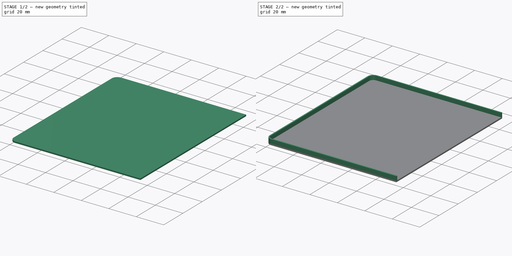
[diagram: build sequence overview — one tinted view per stage of 2, left to right]
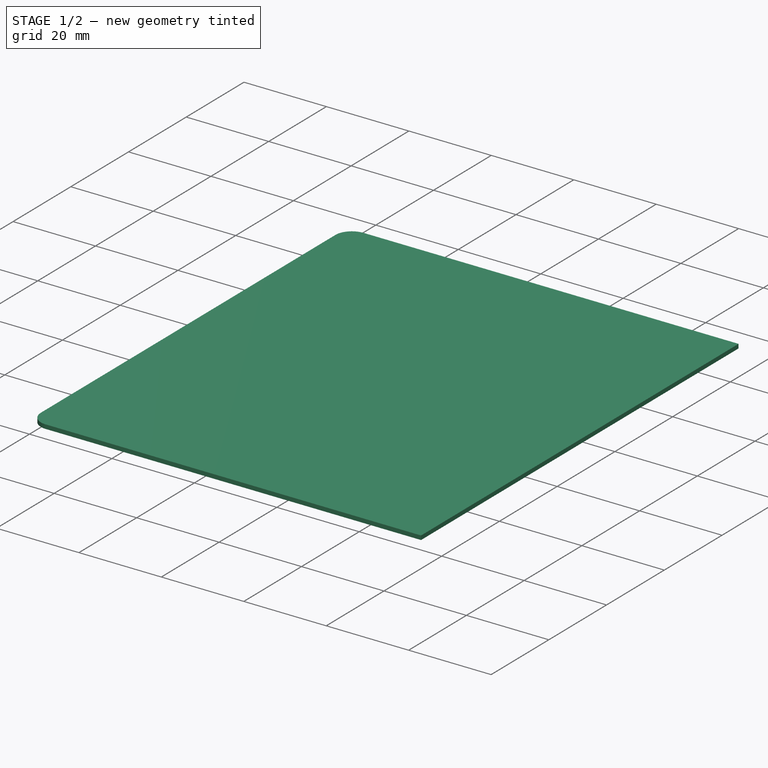
[diagram: stage 1 of 2 — iso view after this stage's code; geometry added in this stage tinted green]
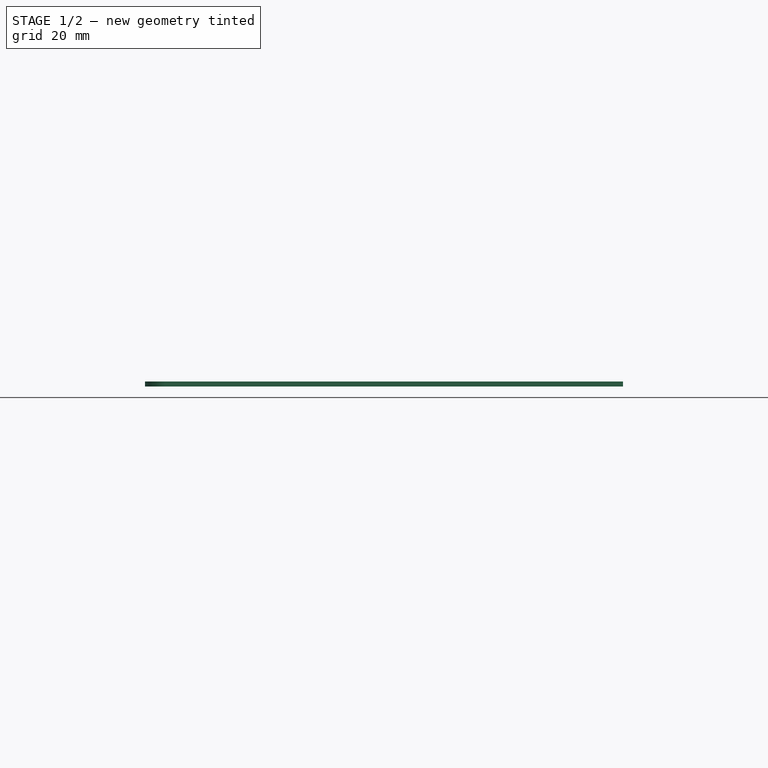
[diagram: stage 1 of 2 — front view after this stage's code; geometry added in this stage tinted green]
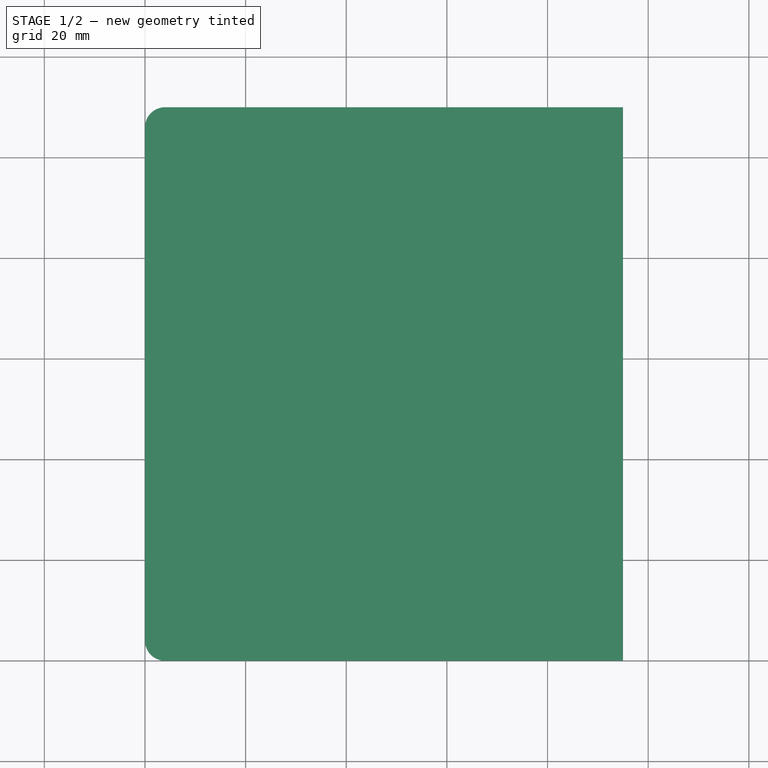
[diagram: stage 1 of 2 — top view after this stage's code; geometry added in this stage tinted green]
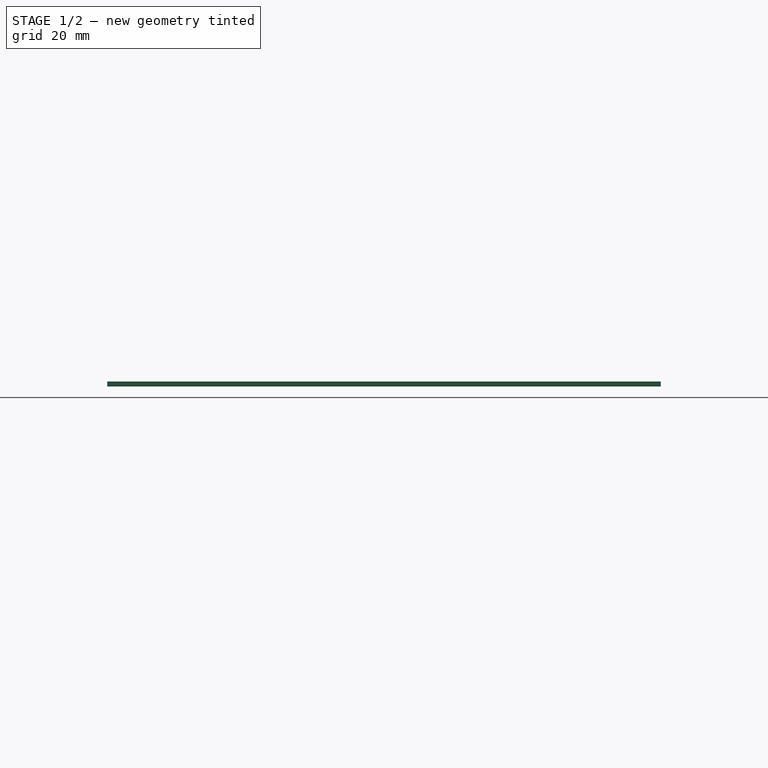
[diagram: stage 1 of 2 — right view after this stage's code; geometry added in this stage tinted green]
FCSTD DOCUMENT  (FreeCAD 0.16R6706 (Git))
Label: couvercle3
License: All rights reserved
LicenseURL: http://en.wikipedia.org/wiki/All_rights_reserved
objects: Sketcher::SketchObject×4, PartDesign::Pad×2
note: 8 computed .brp shape members not serialized (recipe doc carries the construction recipe); baked Part::Feature solids carry a one-line shape summary decoded from their .brp

FEATURE [Sketcher::SketchObject] Sketch
  sketch-geometry (6):
    g0: LineSegment StartX=4 StartY=0 StartZ=0 EndX=95 EndY=0 EndZ=0
    g1: LineSegment StartX=95 StartY=110 StartZ=0 EndX=4 EndY=110 EndZ=0
    g2: LineSegment StartX=0 StartY=106 StartZ=0 EndX=0 EndY=4 EndZ=0
    g3: ArcOfCircle CenterX=4 CenterY=4 CenterZ=0 NormalX=0 NormalY=0 NormalZ=1 Radius=4 StartAngle=3.14159 EndAngle=4.71239
    g4: ArcOfCircle CenterX=4 CenterY=106 CenterZ=0 NormalX=0 NormalY=0 NormalZ=1 Radius=4 StartAngle=1.5708 EndAngle=3.14159
    g5: LineSegment StartX=95 StartY=110 StartZ=0 EndX=95 EndY=0 EndZ=0
  constraints (16):
    c: Horizontal(g0)
    c: Horizontal(g1)
    c: Vertical(g2)
    c: Tangent(g2,g3) = -1.5708
    c: Tangent(g0,g3) = -1.5708
    c: Tangent(g1,g4) = -1.5708
    c: Tangent(g2,g4) = -1.5708
    c: PointOnObject(g0,g-1)
    c: PointOnObject(g2,g-2)
    c: Radius(g3) = 4
    c: Coincident(g5,g1)
    c: Coincident(g5,g0)
    c: Vertical(g5)
    c: DistanceX(g2,g0) = 95
    c: DistanceY(g5,g5) = 110
    c: Equal(g4,g3)
FEATURE [PartDesign::Pad] Pad  label="base"
  Length = 1
  Length2 = 100
  Sketch = -> Sketch
  Type = 0
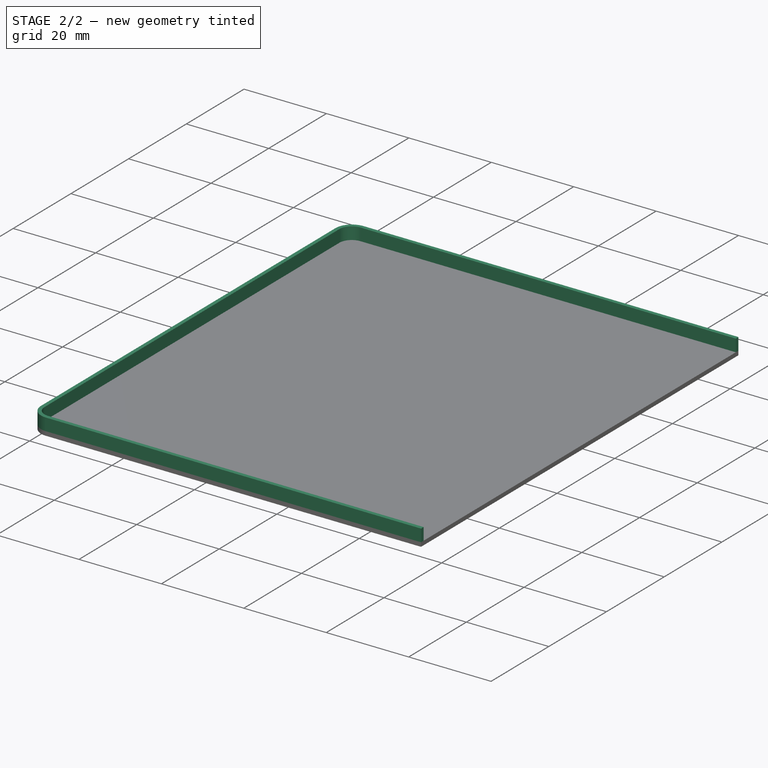
[diagram: stage 2 of 2 — iso view after this stage's code; geometry added in this stage tinted green]
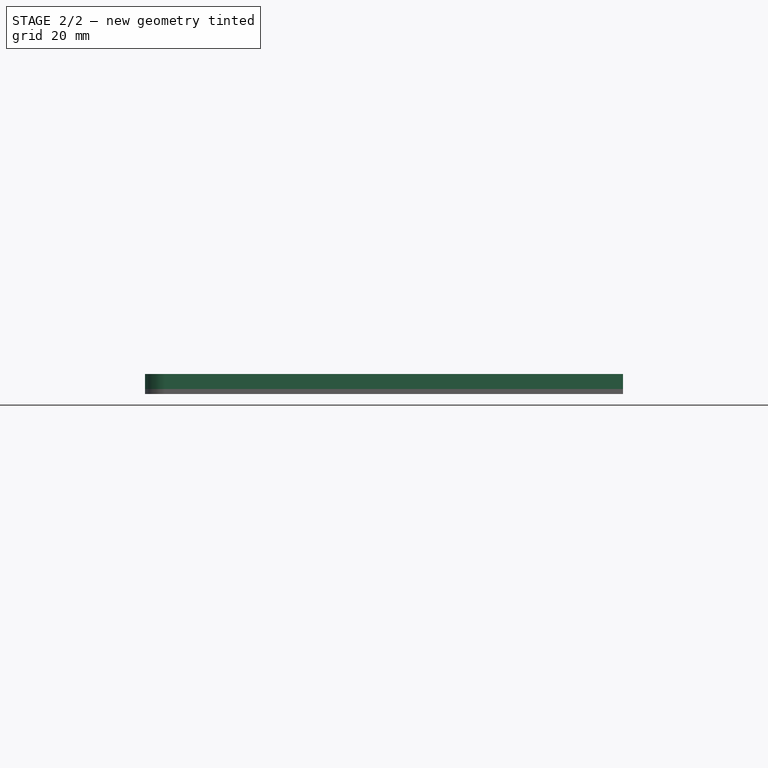
[diagram: stage 2 of 2 — front view after this stage's code; geometry added in this stage tinted green]
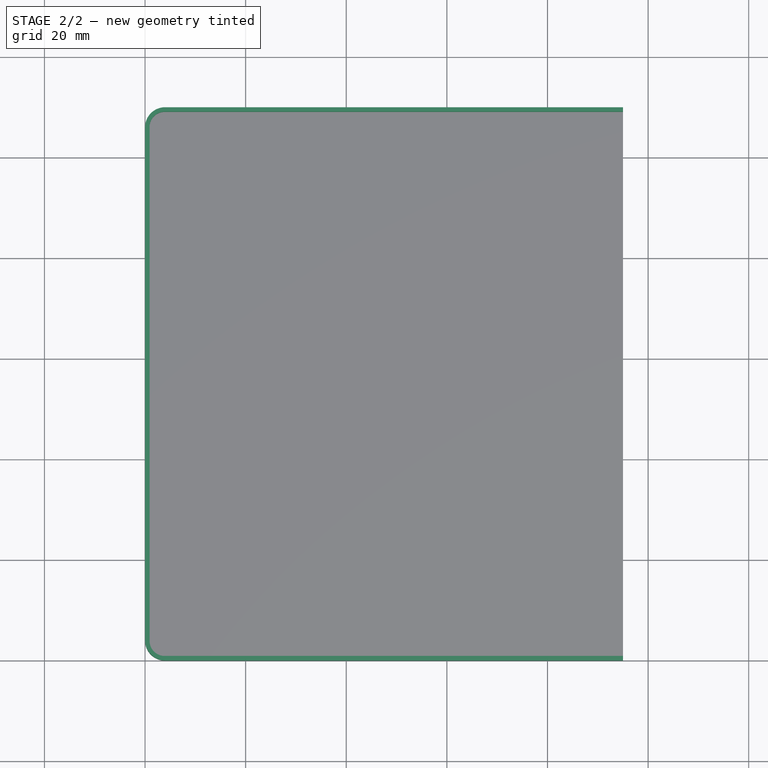
[diagram: stage 2 of 2 — top view after this stage's code; geometry added in this stage tinted green]
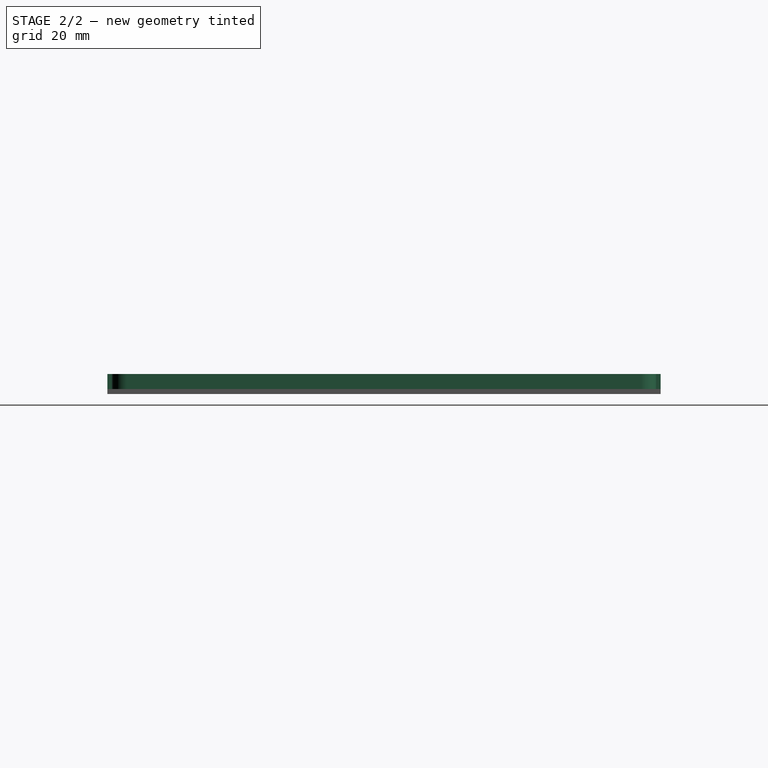
[diagram: stage 2 of 2 — right view after this stage's code; geometry added in this stage tinted green]
FEATURE [Sketcher::SketchObject] Sketch001
  Placement = pos=(0,0,1) rot=(0,0,1;0rad)
  Support = -> Pad [Face8]
  sketch-geometry (12):
    g0: LineSegment StartX=4 StartY=0 StartZ=0 EndX=95 EndY=0 EndZ=0
    g1: LineSegment StartX=95 StartY=0 StartZ=0 EndX=95 EndY=0.9 EndZ=0
    g2: LineSegment StartX=95 StartY=0.9 StartZ=0 EndX=3.9 EndY=0.9 EndZ=0
    g3: LineSegment StartX=0.9 StartY=3.9 StartZ=0 EndX=0.9 EndY=106.1 EndZ=0
    g4: LineSegment StartX=3.9 StartY=109.1 StartZ=0 EndX=95 EndY=109.1 EndZ=0
    g5: LineSegment StartX=95 StartY=109.1 StartZ=0 EndX=95 EndY=110 EndZ=0
    g6: LineSegment StartX=95 StartY=110 StartZ=0 EndX=4 EndY=110 EndZ=0
    g7: LineSegment StartX=0 StartY=106 StartZ=0 EndX=0 EndY=4 EndZ=0
    g8: ArcOfCircle CenterX=4 CenterY=4 CenterZ=0 NormalX=0 NormalY=0 NormalZ=1 Radius=4 StartAngle=3.14159 EndAngle=4.71239
    g9: ArcOfCircle CenterX=4 CenterY=106 CenterZ=0 NormalX=0 NormalY=0 NormalZ=1 Radius=4 StartAngle=1.5708 EndAngle=3.14159
    g10: ArcOfCircle CenterX=3.9 CenterY=106.1 CenterZ=0 NormalX=0 NormalY=0 NormalZ=1 Radius=3 StartAngle=1.5708 EndAngle=3.14159
    g11: ArcOfCircle CenterX=3.9 CenterY=3.9 CenterZ=0 NormalX=0 NormalY=0 NormalZ=1 Radius=3 StartAngle=3.14159 EndAngle=4.71239
  constraints (32):
    c: Horizontal(g0)
    c: Coincident(g0,g1)
    c: Vertical(g1)
    c: Coincident(g1,g2)
    c: Horizontal(g2)
    c: Vertical(g3)
    c: Horizontal(g4)
    c: Coincident(g4,g5)
    c: Coincident(g5,g6)
    c: Horizontal(g6)
    c: Vertical(g5)
    c: Tangent(g7,g8) = -1.5708
    c: Tangent(g0,g8) = -1.5708
    c: Tangent(g6,g9) = -1.5708
    c: Tangent(g7,g9) = -1.5708
    c: Tangent(g4,g10) = 1.5708
    c: Tangent(g3,g10) = 1.5708
    c: Tangent(g3,g11) = 1.5708
    c: Tangent(g2,g11) = 1.5708
    c: Vertical(g7)
    c: Equal(g8,g9)
    c: Radius(g8) = 4
    c: PointOnObject(g0,g-1)
    c: PointOnObject(g7,g-2)
    c: DistanceY(g0,g6) = 110
    c: DistanceY(g1,g1) = 0.9
    c: DistanceX(g7,g0) = 95
    c: DistanceX(g7,g3) = 0.9
    c: Equal(g0,g6)
    c: Equal(g5,g1)
    c: Equal(g10,g11)
    c: Radius(g11) = 3
FEATURE [PartDesign::Pad] Pad001  label="rebord"
  Length = 3
  Length2 = 100
  Sketch = -> Sketch001
  Type = 0
FEATURE [Sketcher::SketchObject] Sketch002  label="profil"
  Placement = pos=(95,0,0) rot=(0.57735,0.57735,0.57735;2.0944rad)
  Support = -> Pad001 [Face13]
  sketch-geometry (3):
    g0: LineSegment StartX=0.9 StartY=4 StartZ=0 EndX=0.9 EndY=1.5 EndZ=0
    g1: LineSegment StartX=0.9 StartY=1.5 StartZ=0 EndX=1.9 EndY=3 EndZ=0
    g2: LineSegment StartX=1.9 StartY=3 StartZ=0 EndX=0.9 EndY=4 EndZ=0
  constraints (9):
    c: Vertical(g0)
    c: Coincident(g0,g1)
    c: Coincident(g1,g2)
    c: Coincident(g0,g2)
    c: DistanceY(g-1,g0) = 1.5
    c: DistanceX(g-1,g0) = 0.9
    c: DistanceY(g0,g0) = 2.5
    c: DistanceX(g0,g1) = 1
    c: DistanceY(g0,g1) = 1.5
FEATURE [Sketcher::SketchObject] Sketch003  label="chemin"
  Placement = pos=(0,0,4) rot=(0,0,1;0rad)
  Support = -> Pad001 [Face16]
  sketch-geometry (5):
    g0: LineSegment StartX=95 StartY=0.9 StartZ=0 EndX=3.9 EndY=0.9 EndZ=0
    g1: LineSegment StartX=0.9 StartY=3.9 StartZ=0 EndX=0.9 EndY=106.1 EndZ=0
    g2: LineSegment StartX=3.9 StartY=109.1 StartZ=0 EndX=95 EndY=109.1 EndZ=0
    g3: ArcOfCircle CenterX=3.9 CenterY=3.9 CenterZ=0 NormalX=0 NormalY=0 NormalZ=1 Radius=3 StartAngle=3.14159 EndAngle=4.71239
    g4: ArcOfCircle CenterX=3.9 CenterY=106.1 CenterZ=0 NormalX=0 NormalY=0 NormalZ=1 Radius=3 StartAngle=1.5708 EndAngle=3.14159
  constraints (14):
    c: Horizontal(g0)
    c: Vertical(g1)
    c: Horizontal(g2)
    c: Tangent(g0,g3) = 1.5708
    c: Tangent(g1,g3) = 1.5708
    c: Tangent(g2,g4) = 1.5708
    c: Tangent(g1,g4) = 1.5708
    c: DistanceX(g-1,g1) = 0.9
    c: DistanceY(g-1,g0) = 0.9
    c: Radius(g3) = 3
    c: Equal(g3,g4)
    c: DistanceX(g-1,g0) = 95
    c: Equal(g2,g0)
    c: DistanceY(g0,g2) = 108.2
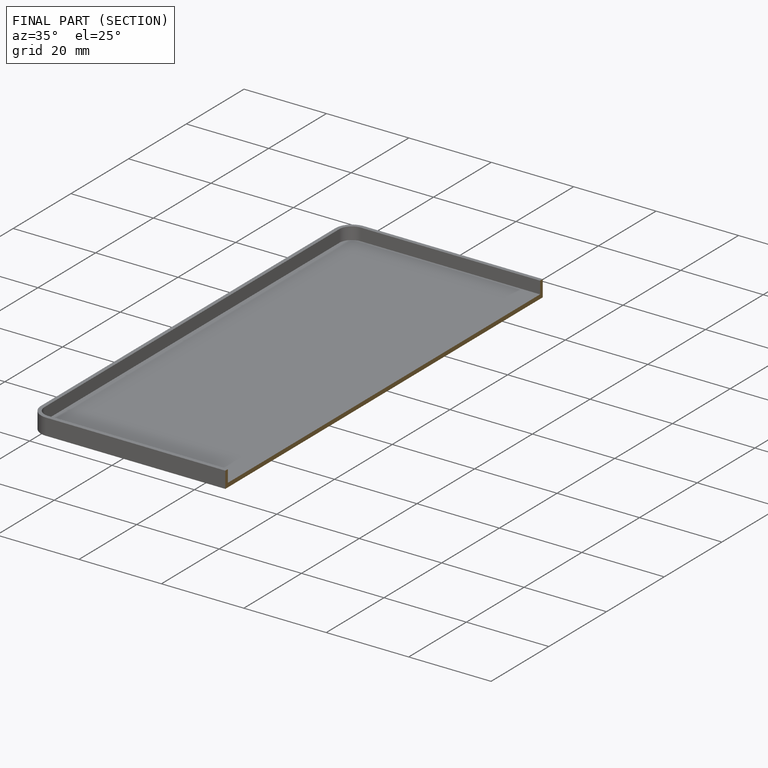
[diagram: finished part — half-section view (interior)]
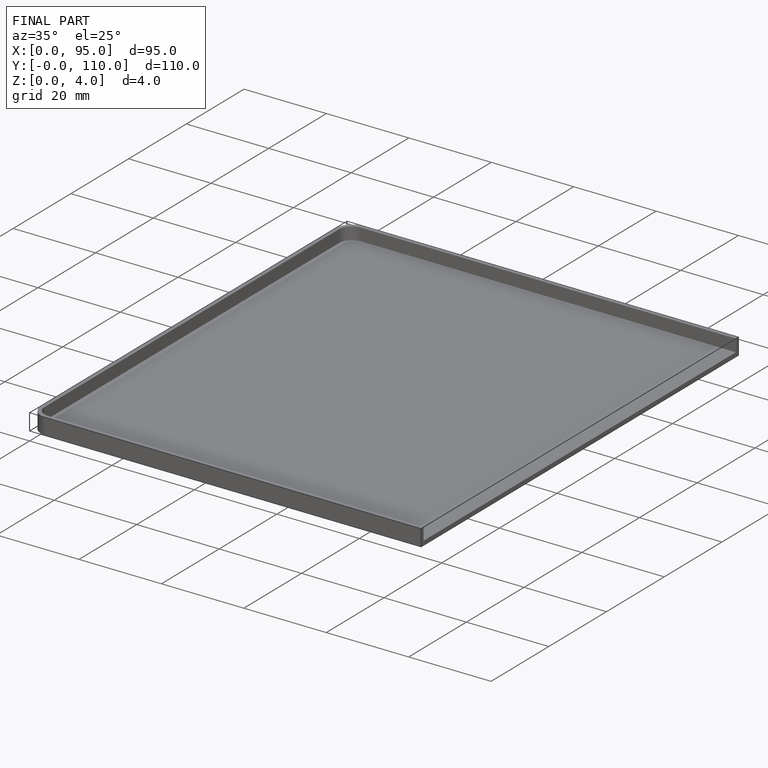
[diagram: finished part — iso view with bounding-box wireframe]
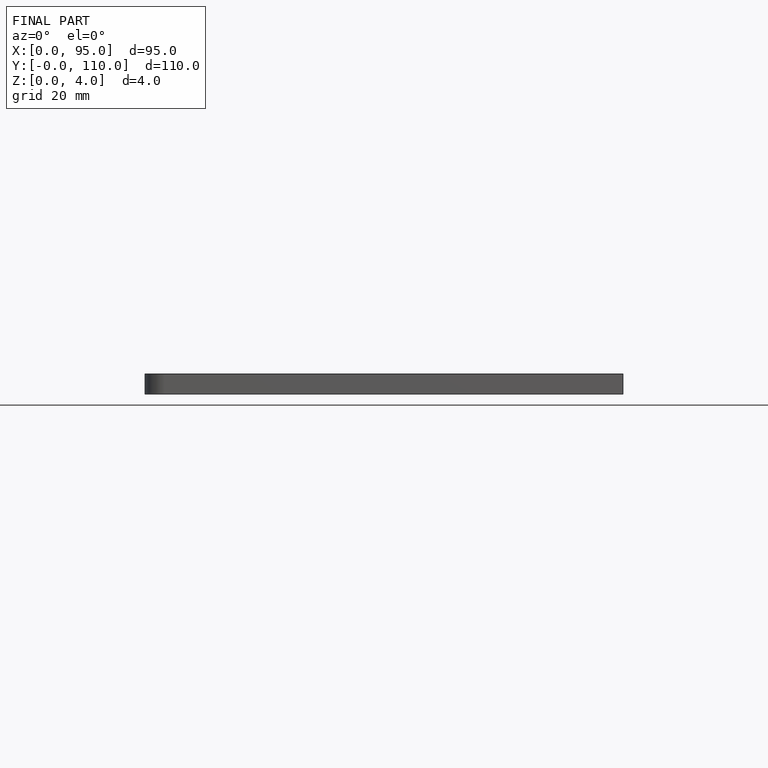
[diagram: finished part — front view with bounding-box wireframe]
